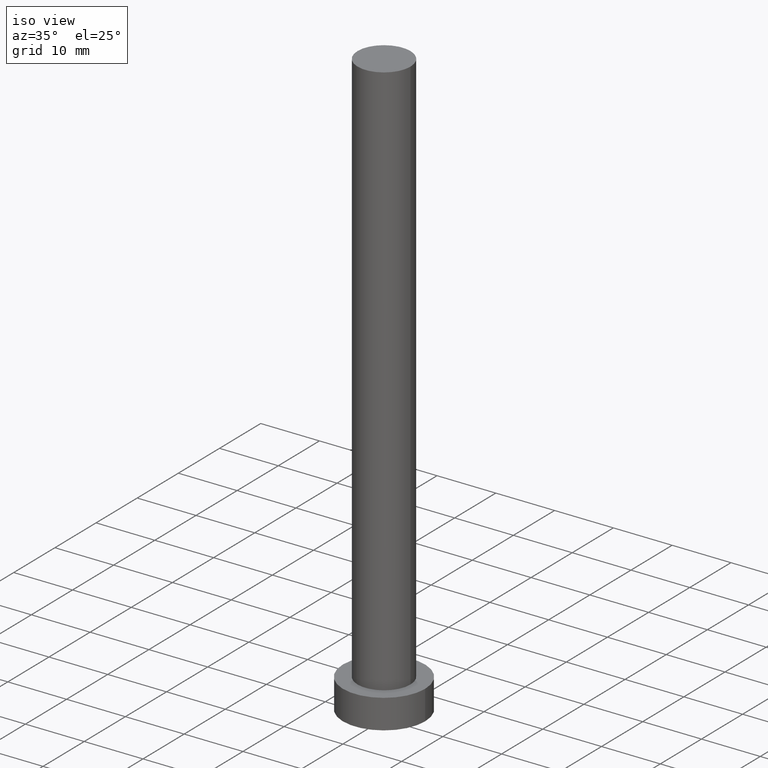
[diagram: clean part render]
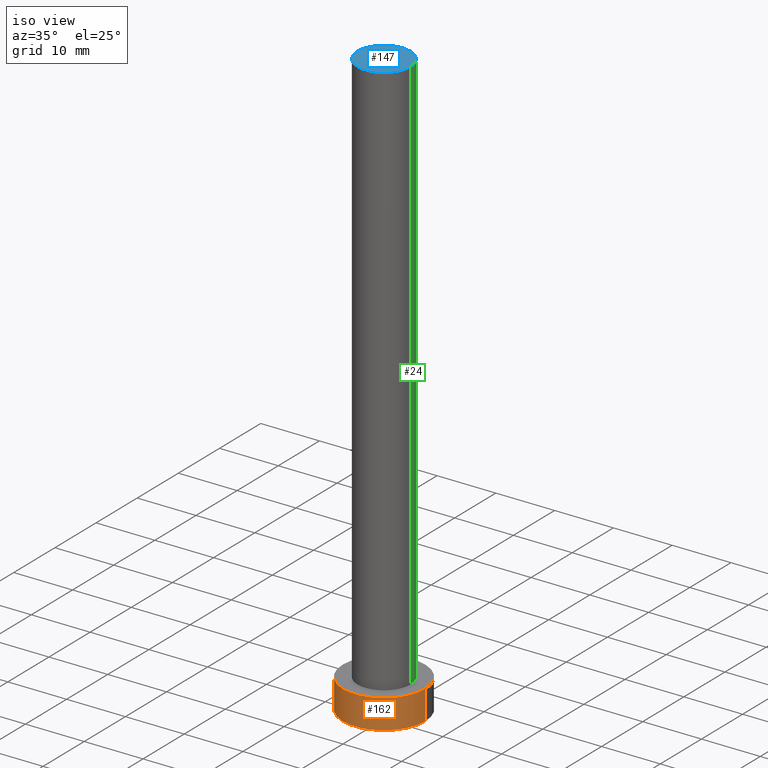
[diagram: same view with three faces highlighted in distinct colors, each labeled with its STEP entity id]
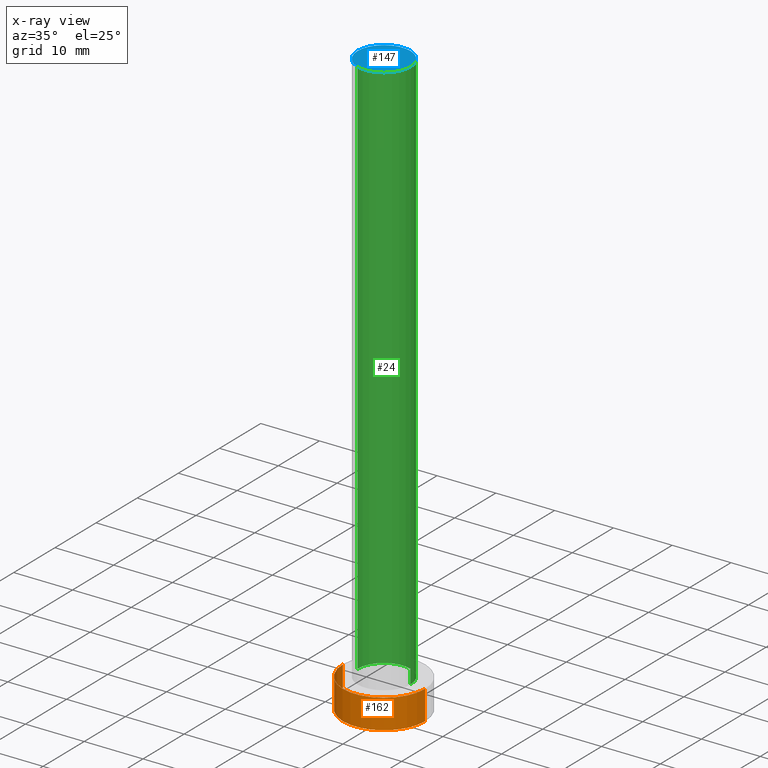
[diagram: x-ray of the same camera — body ghosted, the three highlighted faces saturated]
A machine part, iso view with three faces highlighted in distinct colors.
The next image is the same camera in x-ray (body ghosted, the three faces saturated) — at least one of them is partly hidden behind the body in this view.
Their STEP definitions:

[orange] entity #162 — the highlighted cylindrical surface (partial cylindrical patch) has radius 7 mm, axis along (-0, -0, -1).
#3 = CARTESIAN_POINT ( 'NONE',  ( 7.000000000000000000, 8.572527594031473190E-16, 5.000000000000000000 ) ) ;
#5 = VECTOR ( 'NONE', #178, 1000.000000000000000 ) ;
#6 = LINE ( 'NONE', #46, #52 ) ;
#10 = FACE_OUTER_BOUND ( 'NONE', #203, .T. ) ;
#11 = VERTEX_POINT ( 'NONE', #22 ) ;
#13 = DIRECTION ( 'NONE',  ( 1.000000000000000000, 0.000000000000000000, 0.000000000000000000 ) ) ;
#14 = DIRECTION ( 'NONE',  ( -1.000000000000000000, 0.000000000000000000, 0.000000000000000000 ) ) ;
#18 = ORIENTED_EDGE ( 'NONE', *, *, #98, .T. ) ;
#22 = CARTESIAN_POINT ( 'NONE',  ( 7.000000000000000000, 8.572527594031473190E-16, 0.000000000000000000 ) ) ;
#25 = AXIS2_PLACEMENT_3D ( 'NONE', #210, #29, #14 ) ;
#29 = DIRECTION ( 'NONE',  ( -0.000000000000000000, -0.000000000000000000, -1.000000000000000000 ) ) ;
#32 = CARTESIAN_POINT ( 'NONE',  ( -7.000000000000000000, 0.000000000000000000, 5.000000000000000000 ) ) ;
#43 = EDGE_CURVE ( 'NONE', #238, #115, #231, .T. ) ;
#46 = CARTESIAN_POINT ( 'NONE',  ( 7.000000000000000000, 8.572527594031473190E-16, 5.000000000000000000 ) ) ;
#52 = VECTOR ( 'NONE', #89, 1000.000000000000000 ) ;
#70 = AXIS2_PLACEMENT_3D ( 'NONE', #140, #220, #125 ) ;
#78 = ORIENTED_EDGE ( 'NONE', *, *, #43, .T. ) ;
#89 = DIRECTION ( 'NONE',  ( -0.000000000000000000, -0.000000000000000000, -1.000000000000000000 ) ) ;
#93 = ORIENTED_EDGE ( 'NONE', *, *, #242, .F. ) ;
#94 = CIRCLE ( 'NONE', #70, 7.000000000000000000 ) ;
#95 = DIRECTION ( 'NONE',  ( 0.000000000000000000, 0.000000000000000000, 1.000000000000000000 ) ) ;
#96 = ORIENTED_EDGE ( 'NONE', *, *, #121, .F. ) ;
#98 = EDGE_CURVE ( 'NONE', #115, #11, #94, .T. ) ;
#99 = CARTESIAN_POINT ( 'NONE',  ( -7.000000000000000000, 0.000000000000000000, 5.000000000000000000 ) ) ;
#105 = VERTEX_POINT ( 'NONE', #3 ) ;
#115 = VERTEX_POINT ( 'NONE', #146 ) ;
#121 = EDGE_CURVE ( 'NONE', #105, #11, #6, .T. ) ;
#125 = DIRECTION ( 'NONE',  ( 1.000000000000000000, 0.000000000000000000, 0.000000000000000000 ) ) ;
#140 = CARTESIAN_POINT ( 'NONE',  ( 0.000000000000000000, 0.000000000000000000, 0.000000000000000000 ) ) ;
#146 = CARTESIAN_POINT ( 'NONE',  ( -7.000000000000000000, 0.000000000000000000, 0.000000000000000000 ) ) ;
#162 = ADVANCED_FACE ( 'NONE', ( #10 ), #206, .T. ) ;
#178 = DIRECTION ( 'NONE',  ( -0.000000000000000000, -0.000000000000000000, -1.000000000000000000 ) ) ;
#189 = AXIS2_PLACEMENT_3D ( 'NONE', #190, #95, #13 ) ;
#190 = CARTESIAN_POINT ( 'NONE',  ( 0.000000000000000000, 0.000000000000000000, 5.000000000000000000 ) ) ;
#203 = EDGE_LOOP ( 'NONE', ( #96, #93, #78, #18 ) ) ;
#206 = CYLINDRICAL_SURFACE ( 'NONE', #25, 7.000000000000000000 ) ;
#210 = CARTESIAN_POINT ( 'NONE',  ( 0.000000000000000000, 0.000000000000000000, 5.000000000000000000 ) ) ;
#220 = DIRECTION ( 'NONE',  ( 0.000000000000000000, 0.000000000000000000, 1.000000000000000000 ) ) ;
#231 = LINE ( 'NONE', #99, #5 ) ;
#238 = VERTEX_POINT ( 'NONE', #32 ) ;
#242 = EDGE_CURVE ( 'NONE', #238, #105, #244, .T. ) ;
#244 = CIRCLE ( 'NONE', #189, 7.000000000000000000 ) ;

[blue] entity #147 — the highlighted planar face has unit normal (0, 0, 1).
#16 = DIRECTION ( 'NONE',  ( 0.000000000000000000, 0.000000000000000000, 1.000000000000000000 ) ) ;
#27 = EDGE_CURVE ( 'NONE', #161, #155, #117, .T. ) ;
#45 = DIRECTION ( 'NONE',  ( 1.000000000000000000, 0.000000000000000000, -0.000000000000000000 ) ) ;
#65 = AXIS2_PLACEMENT_3D ( 'NONE', #241, #106, #45 ) ;
#87 = CARTESIAN_POINT ( 'NONE',  ( 0.000000000000000000, 0.000000000000000000, 100.0000000000000000 ) ) ;
#90 = FACE_OUTER_BOUND ( 'NONE', #136, .T. ) ;
#91 = AXIS2_PLACEMENT_3D ( 'NONE', #233, #156, #195 ) ;
#106 = DIRECTION ( 'NONE',  ( 0.000000000000000000, 0.000000000000000000, 1.000000000000000000 ) ) ;
#107 = EDGE_CURVE ( 'NONE', #155, #161, #208, .T. ) ;
#117 = CIRCLE ( 'NONE', #91, 4.500000000000000000 ) ;
#126 = CARTESIAN_POINT ( 'NONE',  ( 4.500000000000000000, 5.510910596163088569E-16, 100.0000000000000000 ) ) ;
#130 = AXIS2_PLACEMENT_3D ( 'NONE', #87, #16, #168 ) ;
#136 = EDGE_LOOP ( 'NONE', ( #251, #194 ) ) ;
#147 = ADVANCED_FACE ( 'NONE', ( #90 ), #163, .T. ) ;
#148 = CARTESIAN_POINT ( 'NONE',  ( -4.500000000000000000, 0.000000000000000000, 100.0000000000000000 ) ) ;
#155 = VERTEX_POINT ( 'NONE', #126 ) ;
#156 = DIRECTION ( 'NONE',  ( 0.000000000000000000, 0.000000000000000000, 1.000000000000000000 ) ) ;
#161 = VERTEX_POINT ( 'NONE', #148 ) ;
#163 = PLANE ( 'NONE',  #65 ) ;
#168 = DIRECTION ( 'NONE',  ( 1.000000000000000000, 0.000000000000000000, 0.000000000000000000 ) ) ;
#194 = ORIENTED_EDGE ( 'NONE', *, *, #107, .T. ) ;
#195 = DIRECTION ( 'NONE',  ( 1.000000000000000000, 0.000000000000000000, 0.000000000000000000 ) ) ;
#208 = CIRCLE ( 'NONE', #130, 4.500000000000000000 ) ;
#233 = CARTESIAN_POINT ( 'NONE',  ( 0.000000000000000000, 0.000000000000000000, 100.0000000000000000 ) ) ;
#241 = CARTESIAN_POINT ( 'NONE',  ( 0.000000000000000000, 0.000000000000000000, 100.0000000000000000 ) ) ;
#251 = ORIENTED_EDGE ( 'NONE', *, *, #27, .T. ) ;

[green] entity #24 — the highlighted cylindrical surface (edge-blend (fillet) strip) has radius 4.5 mm, axis along (-0, -0, -1).
#8 = CARTESIAN_POINT ( 'NONE',  ( 4.500000000000000000, 5.510910596163088569E-16, 5.000000000000000000 ) ) ;
#9 = CARTESIAN_POINT ( 'NONE',  ( -4.500000000000000000, 0.000000000000000000, 100.0000000000000000 ) ) ;
#16 = DIRECTION ( 'NONE',  ( 0.000000000000000000, 0.000000000000000000, 1.000000000000000000 ) ) ;
#23 = DIRECTION ( 'NONE',  ( 0.000000000000000000, 0.000000000000000000, 1.000000000000000000 ) ) ;
#24 = ADVANCED_FACE ( 'NONE', ( #255 ), #197, .T. ) ;
#28 = LINE ( 'NONE', #9, #219 ) ;
#36 = CIRCLE ( 'NONE', #185, 4.500000000000000000 ) ;
#42 = ORIENTED_EDGE ( 'NONE', *, *, #167, .F. ) ;
#48 = EDGE_CURVE ( 'NONE', #120, #119, #36, .T. ) ;
#61 = DIRECTION ( 'NONE',  ( 1.000000000000000000, 0.000000000000000000, 0.000000000000000000 ) ) ;
#63 = EDGE_LOOP ( 'NONE', ( #188, #84, #253, #42 ) ) ;
#72 = CARTESIAN_POINT ( 'NONE',  ( 4.500000000000000000, 5.510910596163088569E-16, 100.0000000000000000 ) ) ;
#80 = DIRECTION ( 'NONE',  ( -0.000000000000000000, -0.000000000000000000, -1.000000000000000000 ) ) ;
#84 = ORIENTED_EDGE ( 'NONE', *, *, #214, .T. ) ;
#87 = CARTESIAN_POINT ( 'NONE',  ( 0.000000000000000000, 0.000000000000000000, 100.0000000000000000 ) ) ;
#107 = EDGE_CURVE ( 'NONE', #155, #161, #208, .T. ) ;
#118 = CARTESIAN_POINT ( 'NONE',  ( 0.000000000000000000, 0.000000000000000000, 100.0000000000000000 ) ) ;
#119 = VERTEX_POINT ( 'NONE', #186 ) ;
#120 = VERTEX_POINT ( 'NONE', #8 ) ;
#126 = CARTESIAN_POINT ( 'NONE',  ( 4.500000000000000000, 5.510910596163088569E-16, 100.0000000000000000 ) ) ;
#128 = DIRECTION ( 'NONE',  ( -0.000000000000000000, -0.000000000000000000, -1.000000000000000000 ) ) ;
#130 = AXIS2_PLACEMENT_3D ( 'NONE', #87, #16, #168 ) ;
#145 = AXIS2_PLACEMENT_3D ( 'NONE', #118, #80, #213 ) ;
#148 = CARTESIAN_POINT ( 'NONE',  ( -4.500000000000000000, 0.000000000000000000, 100.0000000000000000 ) ) ;
#155 = VERTEX_POINT ( 'NONE', #126 ) ;
#159 = CARTESIAN_POINT ( 'NONE',  ( 0.000000000000000000, 0.000000000000000000, 5.000000000000000000 ) ) ;
#161 = VERTEX_POINT ( 'NONE', #148 ) ;
#167 = EDGE_CURVE ( 'NONE', #161, #119, #28, .T. ) ;
#168 = DIRECTION ( 'NONE',  ( 1.000000000000000000, 0.000000000000000000, 0.000000000000000000 ) ) ;
#172 = LINE ( 'NONE', #72, #179 ) ;
#179 = VECTOR ( 'NONE', #245, 1000.000000000000000 ) ;
#185 = AXIS2_PLACEMENT_3D ( 'NONE', #159, #23, #61 ) ;
#186 = CARTESIAN_POINT ( 'NONE',  ( -4.500000000000000000, 0.000000000000000000, 5.000000000000000000 ) ) ;
#188 = ORIENTED_EDGE ( 'NONE', *, *, #107, .F. ) ;
#197 = CYLINDRICAL_SURFACE ( 'NONE', #145, 4.500000000000000000 ) ;
#208 = CIRCLE ( 'NONE', #130, 4.500000000000000000 ) ;
#213 = DIRECTION ( 'NONE',  ( -1.000000000000000000, 0.000000000000000000, 0.000000000000000000 ) ) ;
#214 = EDGE_CURVE ( 'NONE', #155, #120, #172, .T. ) ;
#219 = VECTOR ( 'NONE', #128, 1000.000000000000000 ) ;
#245 = DIRECTION ( 'NONE',  ( -0.000000000000000000, -0.000000000000000000, -1.000000000000000000 ) ) ;
#253 = ORIENTED_EDGE ( 'NONE', *, *, #48, .T. ) ;
#255 = FACE_OUTER_BOUND ( 'NONE', #63, .T. ) ;